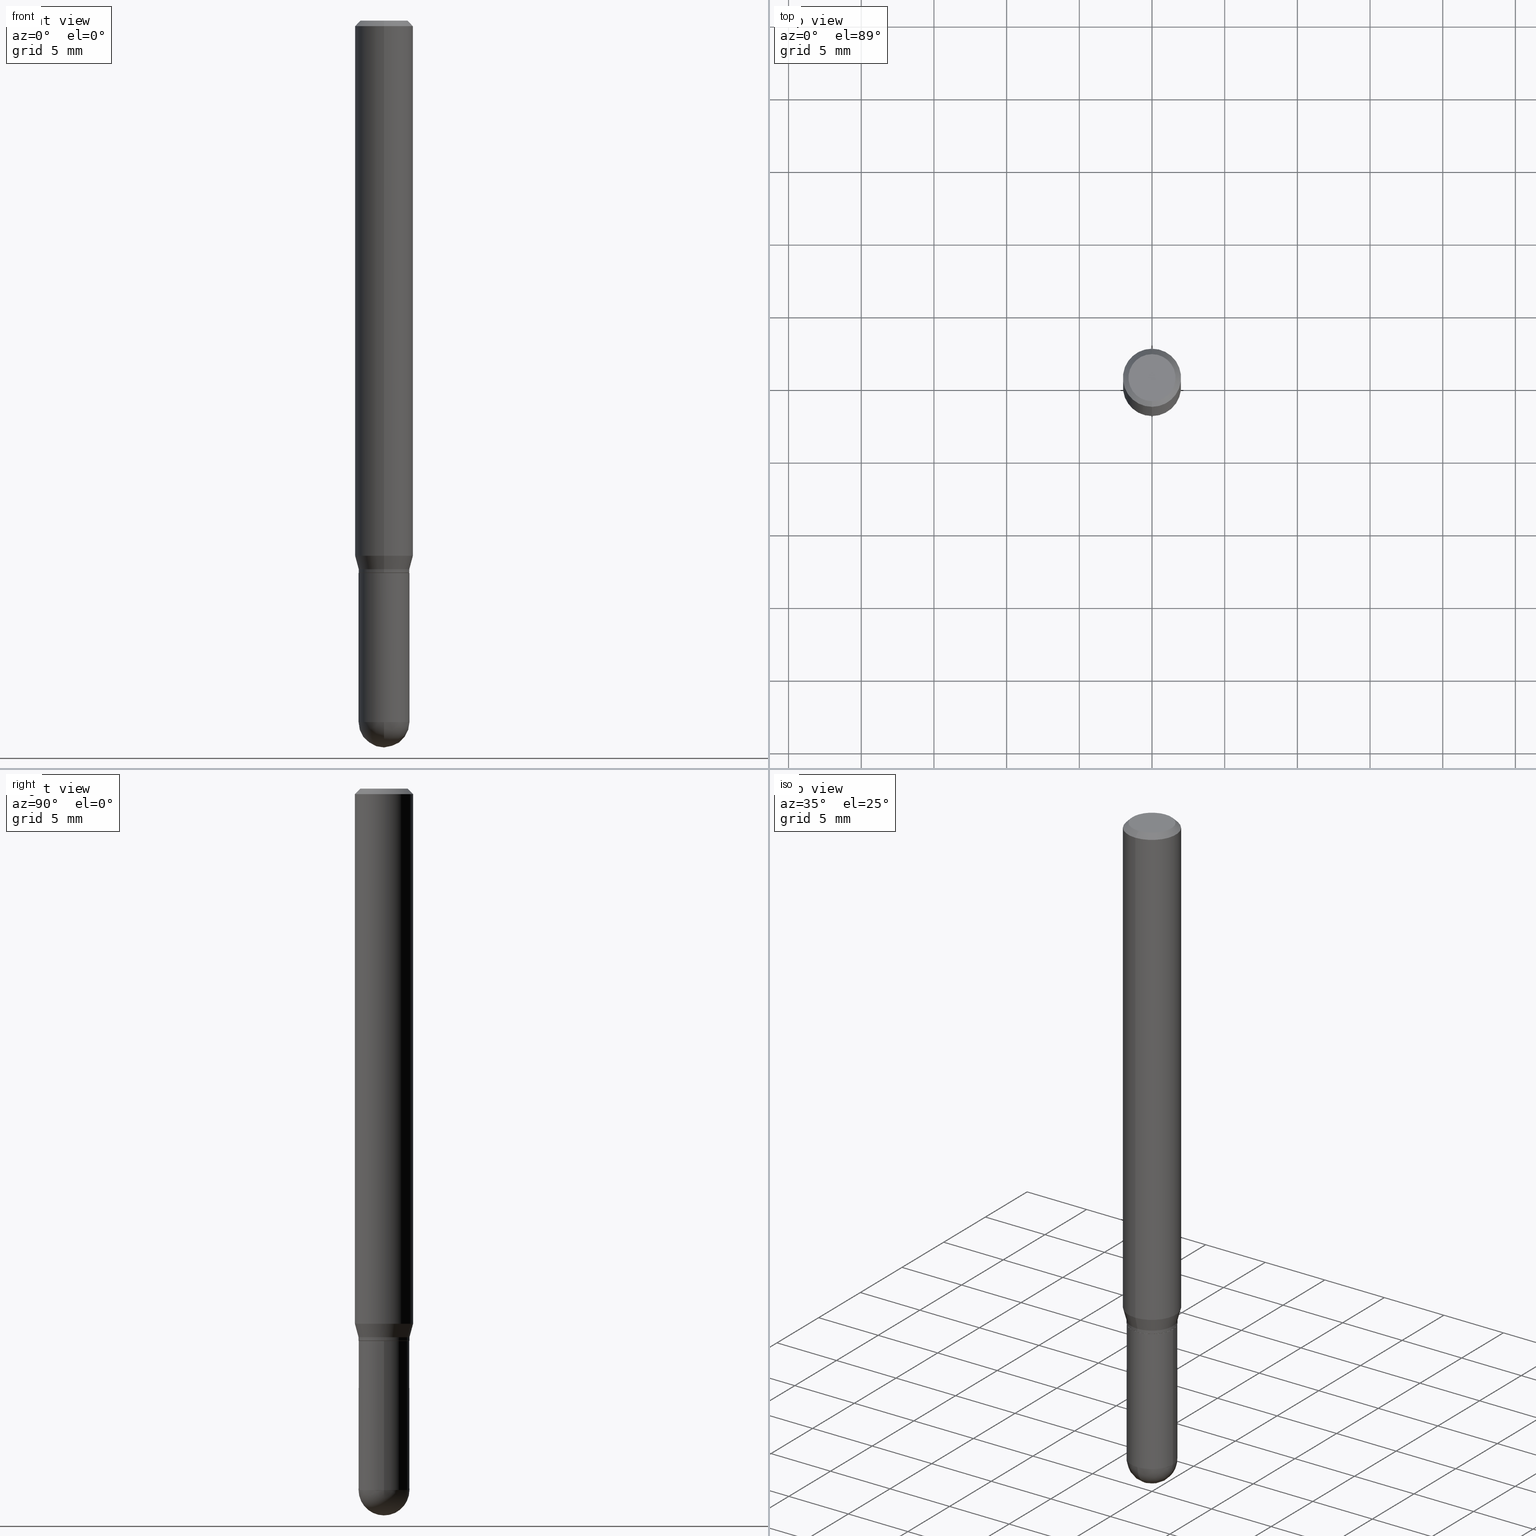
[diagram: canonical four-view strip — front | top / right | iso, engineering-drawing reading convention]
A machine part, canonical four-view strip (front | top / right | iso — engineering-drawing reading convention). The complete STEP part file that produces these views, byte-faithful:
ISO-10303-21;
HEADER;
FILE_DESCRIPTION (( 'STEP AP203' ),
    '1' );
FILE_NAME ('48868.STEP',
    '2024-03-08T13:32:44',
    ( '' ),
    ( '' ),
    'SwSTEP 2.0',
    'SolidWorks 2023',
    '' );
FILE_SCHEMA (( 'CONFIG_CONTROL_DESIGN' ));
ENDSEC;

DATA;
#1 = DIRECTION ( 'NONE',  ( -2.445908048954081787E-29, 3.490852318197870426E-15, 1.000000000000000000 ) ) ;
#2 = AXIS2_PLACEMENT_3D ( 'NONE', #27, #419, #63 ) ;
#3 = VERTEX_POINT ( 'NONE', #241 ) ;
#4 = DIRECTION ( 'NONE',  ( 6.982962677686264344E-15, 1.000000000000000000, -3.496114991891765576E-15 ) ) ;
#5 = ORIENTED_EDGE ( 'NONE', *, *, #56, .T. ) ;
#6 = DIRECTION ( 'NONE',  ( -4.851104656540964275E-15, -0.7071067811865500152, -0.7071067811865450192 ) ) ;
#7 = MANIFOLD_SOLID_BREP ( 'Body-Move/Copy2[1]', #458 ) ;
#8 = DIRECTION ( 'NONE',  ( 1.000000000000000000, -6.982962677686273021E-15, 0.000000000000000000 ) ) ;
#9 = LOCAL_TIME ( 8, 32, 44.00000000000000000, #81 ) ;
#10 = VERTEX_POINT ( 'NONE', #360 ) ;
#11 = ORIENTED_EDGE ( 'NONE', *, *, #97, .T. ) ;
#12 = DIRECTION ( 'NONE',  ( 2.445908048954081787E-29, -3.490852318197870426E-15, -1.000000000000000000 ) ) ;
#13 = DATE_AND_TIME ( #312, #9 ) ;
#14 = CYLINDRICAL_SURFACE ( 'NONE', #265, 0.07874999999999997280 ) ;
#15 = ORIENTED_EDGE ( 'NONE', *, *, #127, .F. ) ;
#16 = DIRECTION ( 'NONE',  ( -6.982962677686264344E-15, -1.000000000000000000, 3.490852318197869243E-15 ) ) ;
#17 = EDGE_CURVE ( 'NONE', #90, #414, #444, .T. ) ;
#18 = ORIENTED_EDGE ( 'NONE', *, *, #328, .T. ) ;
#19 = AXIS2_PLACEMENT_3D ( 'NONE', #124, #484, #404 ) ;
#20 = CYLINDRICAL_SURFACE ( 'NONE', #362, 0.06890000000000007230 ) ;
#21 = CYLINDRICAL_SURFACE ( 'NONE', #35, 0.07874999999999997280 ) ;
#22 = FACE_OUTER_BOUND ( 'NONE', #349, .T. ) ;
#23 = ADVANCED_FACE ( 'NONE', ( #22 ), #401, .T. ) ;
#24 = DIRECTION ( 'NONE',  ( -2.445908048954081787E-29, 3.490852318197870426E-15, 1.000000000000000000 ) ) ;
#25 = DIRECTION ( 'NONE',  ( -4.937700262164674260E-15, -0.7071067811865632269, 0.7071067811865319186 ) ) ;
#26 = CIRCLE ( 'NONE', #109, 0.06889999999999972535 ) ;
#27 = CARTESIAN_POINT ( 'NONE',  ( 4.645412544229285965E-29, -6.632417951266439838E-15, -1.899600000000000177 ) ) ;
#28 = ADVANCED_FACE ( 'NONE', ( #187 ), #383, .F. ) ;
#29 = CARTESIAN_POINT ( 'NONE',  ( 4.679918503997674770E-29, -6.583003452920844326E-15, -1.899600000000000177 ) ) ;
#30 = DIRECTION ( 'NONE',  ( -6.982962677686265922E-15, -1.000000000000000000, 3.490852318197870426E-15 ) ) ;
#31 = CARTESIAN_POINT ( 'NONE',  ( 3.634863951550660961E-29, -5.187755630073856027E-15, -1.486099999999999977 ) ) ;
#32 = CARTESIAN_POINT ( 'NONE',  ( 3.668862073431105567E-31, -5.236278477296780938E-17, -0.01499999999999993006 ) ) ;
#33 = APPROVAL_DATE_TIME ( #13, #175 ) ;
#34 = APPROVAL ( #339, 'UNSPECIFIED' ) ;
#35 = AXIS2_PLACEMENT_3D ( 'NONE', #143, #461, #370 ) ;
#36 = DIRECTION ( 'NONE',  ( -2.445468806185136597E-29, 3.491481338843145583E-15, 1.000000000000000000 ) ) ;
#37 = EDGE_LOOP ( 'NONE', ( #125, #437, #207, #281 ) ) ;
#38 = ORIENTED_EDGE ( 'NONE', *, *, #239, .F. ) ;
#39 = DIRECTION ( 'NONE',  ( 2.445908048954081787E-29, -3.490852318197870426E-15, -1.000000000000000000 ) ) ;
#40 = VERTEX_POINT ( 'NONE', #343 ) ;
#41 = CARTESIAN_POINT ( 'NONE',  ( -0.06890000000000008618, -5.438447646216124813E-15, -1.899600000000000177 ) ) ;
#42 = VECTOR ( 'NONE', #290, 39.37007874015748143 ) ;
#43 = CIRCLE ( 'NONE', #19, 0.06890000000000007230 ) ;
#44 = VERTEX_POINT ( 'NONE', #146 ) ;
#45 = CC_DESIGN_PERSON_AND_ORGANIZATION_ASSIGNMENT ( #332, #506, ( #501 ) ) ;
#46 = EDGE_CURVE ( 'NONE', #399, #340, #111, .T. ) ;
#47 = PRODUCT ( '48868', '48868', '', ( #177 ) ) ;
#48 = ORIENTED_EDGE ( 'NONE', *, *, #212, .T. ) ;
#49 = ORIENTED_EDGE ( 'NONE', *, *, #381, .T. ) ;
#50 = EDGE_CURVE ( 'NONE', #314, #434, #507, .T. ) ;
#51 = AXIS2_PLACEMENT_3D ( 'NONE', #316, #36, #8 ) ;
#52 = CONICAL_SURFACE ( 'NONE', #245, 0.07875000000000000056, 0.7853981633974483900 ) ;
#53 = ORIENTED_EDGE ( 'NONE', *, *, #275, .F. ) ;
#54 = PERSON_AND_ORGANIZATION ( #470, #262 ) ;
#55 = AXIS2_PLACEMENT_3D ( 'NONE', #185, #100, #418 ) ;
#56 = EDGE_CURVE ( 'NONE', #393, #40, #335, .T. ) ;
#57 = LINE ( 'NONE', #62, #459 ) ;
#58 = CIRCLE ( 'NONE', #158, 0.07875000000000000056 ) ;
#59 = EDGE_CURVE ( 'NONE', #193, #246, #71, .T. ) ;
#60 = CARTESIAN_POINT ( 'NONE',  ( 4.895639449387079640E-16, 0.06889999999999986413, -2.405197247238327755E-16 ) ) ;
#61 =( CONVERSION_BASED_UNIT ( 'INCH', #106 ) LENGTH_UNIT ( ) NAMED_UNIT ( #103 ) );
#62 = CARTESIAN_POINT ( 'NONE',  ( -0.06890000000000007230, 4.895639449387095418E-16, -3.389146277185633520E-30 ) ) ;
#63 = DIRECTION ( 'NONE',  ( 1.000000000000000000, -6.982962677686273021E-15, 0.000000000000000000 ) ) ;
#64 = FACE_OUTER_BOUND ( 'NONE', #37, .T. ) ;
#65 = DATE_TIME_ROLE ( 'creation_date' ) ;
#66 = CIRCLE ( 'NONE', #140, 0.06889999999999972535 ) ;
#67 = CARTESIAN_POINT ( 'NONE',  ( 3.668862073431105567E-31, -5.236278477296780938E-17, -0.01499999999999993006 ) ) ;
#68 = AXIS2_PLACEMENT_3D ( 'NONE', #234, #392, #308 ) ;
#69 = PERSON_AND_ORGANIZATION ( #470, #262 ) ;
#70 = DIRECTION ( 'NONE',  ( -2.445908048954081787E-29, 3.490852318197870426E-15, 1.000000000000000000 ) ) ;
#71 = LINE ( 'NONE', #60, #42 ) ;
#72 = ADVANCED_FACE ( 'NONE', ( #225 ), #144, .T. ) ;
#73 = CARTESIAN_POINT ( 'NONE',  ( -5.499083108677932471E-16, -0.07874999999999997280, 2.749046200580822473E-16 ) ) ;
#74 = CARTESIAN_POINT ( 'NONE',  ( -5.402642173245076924E-16, -0.07875000000000004219, -0.01499999999999965423 ) ) ;
#75 = AXIS2_PLACEMENT_3D ( 'NONE', #425, #500, #30 ) ;
#76 = DIRECTION ( 'NONE',  ( -2.445908048954081787E-29, 3.490852318197870426E-15, 1.000000000000000000 ) ) ;
#77 = CIRCLE ( 'NONE', #445, 0.06840000000000005798 ) ;
#78 = LOCAL_TIME ( 8, 32, 44.00000000000000000, #503 ) ;
#79 = ORIENTED_EDGE ( 'NONE', *, *, #338, .T. ) ;
#80 = CARTESIAN_POINT ( 'NONE',  ( -5.499083108677930499E-16, -0.07875000000000004219, -0.01499999999999965423 ) ) ;
#81 = COORDINATED_UNIVERSAL_TIME_OFFSET ( 5, 0, .BEHIND. ) ;
#82 = EDGE_LOOP ( 'NONE', ( #321, #235 ) ) ;
#83 = ORIENTED_EDGE ( 'NONE', *, *, #145, .T. ) ;
#84 = DIRECTION ( 'NONE',  ( -2.445468806185136597E-29, 3.491481338843145583E-15, 1.000000000000000000 ) ) ;
#85 = COORDINATED_UNIVERSAL_TIME_OFFSET ( 5, 0, .BEHIND. ) ;
#86 = EDGE_LOOP ( 'NONE', ( #412, #15, #347, #11 ) ) ;
#87 = CARTESIAN_POINT ( 'NONE',  ( -1.700314702926918523E-45, 2.426725536520685702E-31, 6.951670581623077474E-17 ) ) ;
#88 = DIRECTION ( 'NONE',  ( 4.937700262164548042E-15, 0.7071067811865451302, -0.7071067811865499042 ) ) ;
#89 = CONICAL_SURFACE ( 'NONE', #368, 0.07875000000000000056, 0.7853981633974483900 ) ;
#90 = VERTEX_POINT ( 'NONE', #295 ) ;
#91 = DATE_TIME_ROLE ( 'classification_date' ) ;
#92 = ORIENTED_EDGE ( 'NONE', *, *, #317, .T. ) ;
#93 = PRODUCT_RELATED_PRODUCT_CATEGORY ( 'detail', '', ( #47 ) ) ;
#94 = EDGE_CURVE ( 'NONE', #246, #340, #26, .T. ) ;
#95 = VECTOR ( 'NONE', #371, 39.37007874015748143 ) ;
#96 = DIRECTION ( 'NONE',  ( -2.445908048954081787E-29, 3.490852318197870426E-15, 1.000000000000000000 ) ) ;
#97 = EDGE_CURVE ( 'NONE', #327, #408, #309, .T. ) ;
#98 = COORDINATED_UNIVERSAL_TIME_OFFSET ( 5, 0, .BEHIND. ) ;
#99 = ADVANCED_FACE ( 'NONE', ( #64 ), #379, .T. ) ;
#100 = DIRECTION ( 'NONE',  ( -2.445908048954081787E-29, 3.490852318197870426E-15, 1.000000000000000000 ) ) ;
#101 = AXIS2_PLACEMENT_3D ( 'NONE', #213, #462, #423 ) ;
#102 = PRODUCT_DEFINITION_FORMATION_WITH_SPECIFIED_SOURCE ( 'ANY', '', #47, .NOT_KNOWN. ) ;
#103 = DIMENSIONAL_EXPONENTS ( 1.000000000000000000, 0.000000000000000000, 0.000000000000000000, 0.000000000000000000, 0.000000000000000000, 0.000000000000000000, 0.000000000000000000 ) ;
#104 = DIRECTION ( 'NONE',  ( -1.000000000000000000, 6.982962677686265922E-15, -4.876176775795935793E-29 ) ) ;
#105 = APPLICATION_PROTOCOL_DEFINITION ( 'international standard', 'config_control_design', 1994, #233 ) ;
#106 = LENGTH_MEASURE_WITH_UNIT ( LENGTH_MEASURE( 0.02539999999999999897 ), #115 );
#107 = LINE ( 'NONE', #331, #497 ) ;
#108 = DIRECTION ( 'NONE',  ( 1.000000000000000000, -6.982962677686265922E-15, 4.883557194083112340E-29 ) ) ;
#109 = AXIS2_PLACEMENT_3D ( 'NONE', #302, #24, #453 ) ;
#110 = SECURITY_CLASSIFICATION_LEVEL ( 'unclassified' ) ;
#111 = LINE ( 'NONE', #174, #367 ) ;
#112 = CARTESIAN_POINT ( 'NONE',  ( 3.634863951550660961E-29, -5.187755630073856027E-15, -1.486099999999999977 ) ) ;
#113 = PERSON_AND_ORGANIZATION_ROLE ( 'creator' ) ;
#114 = EDGE_CURVE ( 'NONE', #434, #193, #299, .T. ) ;
#115 =( LENGTH_UNIT ( ) NAMED_UNIT ( * ) SI_UNIT ( $, .METRE. ) );
#116 = CARTESIAN_POINT ( 'NONE',  ( -4.811261284925454787E-16, -0.06890000000000491565, -1.486099999999999755 ) ) ;
#117 = AXIS2_PLACEMENT_3D ( 'NONE', #31, #250, #465 ) ;
#118 = AXIS2_PLACEMENT_3D ( 'NONE', #510, #369, #329 ) ;
#119 = ORIENTED_EDGE ( 'NONE', *, *, #243, .F. ) ;
#120 = PERSON_AND_ORGANIZATION ( #470, #262 ) ;
#121 = EDGE_CURVE ( 'NONE', #393, #327, #107, .T. ) ;
#122 = ORIENTED_EDGE ( 'NONE', *, *, #56, .F. ) ;
#123 = CYLINDRICAL_SURFACE ( 'NONE', #182, 0.06890000000000007230 ) ;
#124 = CARTESIAN_POINT ( 'NONE',  ( 4.645412544229285965E-29, -6.632417951266439838E-15, -1.899600000000000177 ) ) ;
#125 = ORIENTED_EDGE ( 'NONE', *, *, #50, .T. ) ;
#126 = AXIS2_PLACEMENT_3D ( 'NONE', #222, #254, #104 ) ;
#127 = EDGE_CURVE ( 'NONE', #229, #44, #251, .T. ) ;
#128 = ORIENTED_EDGE ( 'NONE', *, *, #164, .F. ) ;
#129 = ORIENTED_EDGE ( 'NONE', *, *, #363, .F. ) ;
#130 = CC_DESIGN_APPROVAL ( #175, ( #219 ) ) ;
#131 = AXIS2_PLACEMENT_3D ( 'NONE', #267, #505, #139 ) ;
#132 = DIRECTION ( 'NONE',  ( 1.000000000000000000, -6.982962677686273021E-15, 0.000000000000000000 ) ) ;
#133 = ADVANCED_FACE ( 'NONE', ( #294 ), #460, .F. ) ;
#134 = PERSON_AND_ORGANIZATION ( #470, #262 ) ;
#135 = DIRECTION ( 'NONE',  ( -2.445908048954081787E-29, 3.490852318197870426E-15, 1.000000000000000000 ) ) ;
#136 = EDGE_LOOP ( 'NONE', ( #406, #351, #364, #167 ) ) ;
#137 = APPROVAL_ROLE ( '' ) ;
#138 = APPLICATION_CONTEXT ( 'configuration controlled 3d designs of mechanical parts and assemblies' ) ;
#139 = DIRECTION ( 'NONE',  ( -6.982962677686264344E-15, -1.000000000000000000, 3.490852318197869243E-15 ) ) ;
#140 = AXIS2_PLACEMENT_3D ( 'NONE', #112, #150, #226 ) ;
#141 = AXIS2_PLACEMENT_3D ( 'NONE', #511, #70, #378 ) ;
#142 = AXIS2_PLACEMENT_3D ( 'NONE', #475, #348, #486 ) ;
#143 = CARTESIAN_POINT ( 'NONE',  ( 0.000000000000000000, 0.000000000000000000, 0.000000000000000000 ) ) ;
#144 = SPHERICAL_SURFACE ( 'NONE', #227, 0.06889999999999996128 ) ;
#145 = EDGE_CURVE ( 'NONE', #414, #496, #190, .T. ) ;
#146 = CARTESIAN_POINT ( 'NONE',  ( -4.888104823412213911E-16, -0.06375000000000000111, 2.920585411013450524E-16 ) ) ;
#147 = DIRECTION ( 'NONE',  ( -2.445468806185136597E-29, 3.491481338843145583E-15, 1.000000000000000000 ) ) ;
#148 = DIRECTION ( 'NONE',  ( -2.445908048954081787E-29, 3.490852318197870426E-15, 1.000000000000000000 ) ) ;
#149 = VECTOR ( 'NONE', #160, 39.37007874015748854 ) ;
#150 = DIRECTION ( 'NONE',  ( -2.445908048954081787E-29, 3.490852318197870426E-15, 1.000000000000000000 ) ) ;
#151 = ORIENTED_EDGE ( 'NONE', *, *, #366, .T. ) ;
#152 = LINE ( 'NONE', #73, #361 ) ;
#153 = DIRECTION ( 'NONE',  ( -2.445468806185136597E-29, 3.491481338843145583E-15, 1.000000000000000000 ) ) ;
#154 = ORIENTED_EDGE ( 'NONE', *, *, #451, .T. ) ;
#155 = CC_DESIGN_DATE_AND_TIME_ASSIGNMENT ( #415, #65, ( #501 ) ) ;
#156 = AXIS2_PLACEMENT_3D ( 'NONE', #427, #135, #334 ) ;
#157 = CARTESIAN_POINT ( 'NONE',  ( 4.895639449387457308E-16, 0.06889999999999479874, -1.495600000000000263 ) ) ;
#158 = AXIS2_PLACEMENT_3D ( 'NONE', #67, #148, #224 ) ;
#159 = EDGE_LOOP ( 'NONE', ( #247, #192 ) ) ;
#160 = DIRECTION ( 'NONE',  ( 1.839019923739594004E-15, 0.2588190451025240701, 0.9659258262890673130 ) ) ;
#161 = CARTESIAN_POINT ( 'NONE',  ( 3.658665880933582389E-29, -5.223605231043229660E-15, -1.496099999999999985 ) ) ;
#162 = ORIENTED_EDGE ( 'NONE', *, *, #59, .F. ) ;
#163 = LINE ( 'NONE', #74, #336 ) ;
#164 = EDGE_CURVE ( 'NONE', #10, #3, #380, .T. ) ;
#165 = EDGE_LOOP ( 'NONE', ( #162, #79, #480, #197 ) ) ;
#166 = VECTOR ( 'NONE', #504, 39.37007874015748143 ) ;
#167 = ORIENTED_EDGE ( 'NONE', *, *, #451, .F. ) ;
#168 = MANIFOLD_SOLID_BREP ( 'Body-Move/Copy2[2]', #242 ) ;
#169 = FACE_OUTER_BOUND ( 'NONE', #230, .T. ) ;
#170 = ORIENTED_EDGE ( 'NONE', *, *, #275, .T. ) ;
#171 = ADVANCED_FACE ( 'NONE', ( #463 ), #421, .T. ) ;
#172 = AXIS2_PLACEMENT_3D ( 'NONE', #435, #198, #280 ) ;
#173 = PERSON_AND_ORGANIZATION_ROLE ( 'classification_officer' ) ;
#174 = CARTESIAN_POINT ( 'NONE',  ( -4.811261284925827524E-16, -0.06889999999999986413, 2.405197247238327755E-16 ) ) ;
#175 = APPROVAL ( #272, 'UNSPECIFIED' ) ;
#176 = DIRECTION ( 'NONE',  ( -1.000000000000000000, 6.982962677686265922E-15, -4.883557194083112901E-29 ) ) ;
#177 = MECHANICAL_CONTEXT ( 'NONE', #233, 'mechanical' ) ;
#178 = ADVANCED_FACE ( 'NONE', ( #257 ), #14, .T. ) ;
#179 = ORIENTED_EDGE ( 'NONE', *, *, #447, .F. ) ;
#180 = AXIS2_PLACEMENT_3D ( 'NONE', #482, #236, #442 ) ;
#181 = DIRECTION ( 'NONE',  ( -2.445908048954081787E-29, 3.490852318197870426E-15, 1.000000000000000000 ) ) ;
#182 = AXIS2_PLACEMENT_3D ( 'NONE', #319, #84, #232 ) ;
#183 = DIRECTION ( 'NONE',  ( 6.982962677686265922E-15, 1.000000000000000000, -3.964946289788482474E-15 ) ) ;
#184 = DIRECTION ( 'NONE',  ( 1.000000000000000000, -6.982962677686265922E-15, 4.876176775795935232E-29 ) ) ;
#185 = CARTESIAN_POINT ( 'NONE',  ( 3.668862073431105567E-31, -5.236278477296780938E-17, -0.01499999999999993006 ) ) ;
#186 = EDGE_CURVE ( 'NONE', #3, #10, #417, .T. ) ;
#187 = FACE_OUTER_BOUND ( 'NONE', #400, .T. ) ;
#188 = DIRECTION ( 'NONE',  ( 6.982962677686264344E-15, 1.000000000000000000, -3.496114991891765576E-15 ) ) ;
#189 = CIRCLE ( 'NONE', #494, 0.07874999999999997280 ) ;
#190 = CIRCLE ( 'NONE', #2, 0.06890000000000007230 ) ;
#191 = CARTESIAN_POINT ( 'NONE',  ( 0.000000000000000000, 0.000000000000000000, 0.000000000000000000 ) ) ;
#192 = ORIENTED_EDGE ( 'NONE', *, *, #413, .T. ) ;
#193 = VERTEX_POINT ( 'NONE', #157 ) ;
#194 = ORIENTED_EDGE ( 'NONE', *, *, #306, .T. ) ;
#195 = LINE ( 'NONE', #398, #149 ) ;
#196 = DIRECTION ( 'NONE',  ( -6.982962677686265922E-15, -1.000000000000000000, 3.469013325287954477E-15 ) ) ;
#197 = ORIENTED_EDGE ( 'NONE', *, *, #94, .F. ) ;
#198 = DIRECTION ( 'NONE',  ( -2.445908048954081787E-29, 3.490852318197870426E-15, 1.000000000000000000 ) ) ;
#199 = FACE_OUTER_BOUND ( 'NONE', #159, .T. ) ;
#200 = AXIS2_PLACEMENT_3D ( 'NONE', #268, #310, #273 ) ;
#201 = EDGE_LOOP ( 'NONE', ( #358, #326, #38, #208 ) ) ;
#202 = CARTESIAN_POINT ( 'NONE',  ( 5.595524044111142018E-16, 0.07874999999999494904, -1.449339299545445936 ) ) ;
#203 = EDGE_LOOP ( 'NONE', ( #498, #170, #194, #422 ) ) ;
#204 = ADVANCED_FACE ( 'NONE', ( #199 ), #228, .F. ) ;
#205 = CIRCLE ( 'NONE', #180, 0.06889999999999998903 ) ;
#206 = ORIENTED_EDGE ( 'NONE', *, *, #413, .F. ) ;
#207 = ORIENTED_EDGE ( 'NONE', *, *, #407, .F. ) ;
#208 = ORIENTED_EDGE ( 'NONE', *, *, #212, .F. ) ;
#209 = AXIS2_PLACEMENT_3D ( 'NONE', #346, #436, #269 ) ;
#210 = APPROVAL_STATUS ( 'not_yet_approved' ) ;
#211 = CARTESIAN_POINT ( 'NONE',  ( 3.658100078015724901E-29, -5.220918727096735365E-15, -1.495600000000000041 ) ) ;
#212 = EDGE_CURVE ( 'NONE', #496, #502, #282, .T. ) ;
#213 = CARTESIAN_POINT ( 'NONE',  ( 0.000000000000000000, 0.000000000000000000, 0.000000000000000000 ) ) ;
#214 = DIRECTION ( 'NONE',  ( -6.982962677686266711E-15, -1.000000000000000000, 3.993929815298627073E-15 ) ) ;
#215 =( NAMED_UNIT ( * ) SI_UNIT ( $, .STERADIAN. ) SOLID_ANGLE_UNIT ( ) );
#216 = CARTESIAN_POINT ( 'NONE',  ( 3.658665880933582389E-29, -5.223605231043229660E-15, -1.496099999999999985 ) ) ;
#217 = DIRECTION ( 'NONE',  ( -6.982962677686266711E-15, -1.000000000000000000, 3.993929815298627073E-15 ) ) ;
#218 = DIRECTION ( 'NONE',  ( 1.000000000000000000, -6.982962677686273021E-15, 0.000000000000000000 ) ) ;
#219 = SECURITY_CLASSIFICATION ( '', '', #110 ) ;
#220 = VECTOR ( 'NONE', #88, 39.37007874015748143 ) ;
#221 = DIRECTION ( 'NONE',  ( -2.445908048954081787E-29, 3.490852318197870426E-15, 1.000000000000000000 ) ) ;
#222 = CARTESIAN_POINT ( 'NONE',  ( 4.811261284926208150E-16, 0.06889999999999484037, -1.496100000000000207 ) ) ;
#223 = EDGE_CURVE ( 'NONE', #40, #393, #189, .T. ) ;
#224 = DIRECTION ( 'NONE',  ( -6.982962677686264344E-15, -1.000000000000000000, 3.496114991891765576E-15 ) ) ;
#225 = FACE_OUTER_BOUND ( 'NONE', #276, .T. ) ;
#226 = DIRECTION ( 'NONE',  ( -6.982962677686266711E-15, -1.000000000000000000, 3.964946289788496674E-15 ) ) ;
#227 = AXIS2_PLACEMENT_3D ( 'NONE', #341, #176, #183 ) ;
#228 = PLANE ( 'NONE',  #68 ) ;
#229 = VERTEX_POINT ( 'NONE', #488 ) ;
#230 = EDGE_LOOP ( 'NONE', ( #473, #83, #48, #92, #128 ) ) ;
#231 = ORIENTED_EDGE ( 'NONE', *, *, #447, .T. ) ;
#232 = DIRECTION ( 'NONE',  ( 1.000000000000000000, -6.982962677686265922E-15, 4.876176775795935232E-29 ) ) ;
#233 = APPLICATION_CONTEXT ( 'configuration controlled 3d designs of mechanical parts and assemblies' ) ;
#234 = CARTESIAN_POINT ( 'NONE',  ( 4.451638707024993845E-16, 0.06375000000000000111, -1.877834823769988410E-16 ) ) ;
#235 = ORIENTED_EDGE ( 'NONE', *, *, #164, .T. ) ;
#236 = DIRECTION ( 'NONE',  ( -2.445908048954081787E-29, 3.490852318197870426E-15, 1.000000000000000000 ) ) ;
#237 = AXIS2_PLACEMENT_3D ( 'NONE', #161, #153, #395 ) ;
#238 = EDGE_LOOP ( 'NONE', ( #357, #18, #471, #283, #405 ) ) ;
#239 = EDGE_CURVE ( 'NONE', #502, #90, #43, .T. ) ;
#240 = APPROVAL_ROLE ( '' ) ;
#241 = CARTESIAN_POINT ( 'NONE',  ( 0.06890000000000007230, -5.704731359535814187E-15, -1.496099999999999985 ) ) ;
#242 = CLOSED_SHELL ( 'NONE', ( #261, #99, #428, #178, #396, #23, #291, #493, #204, #28, #375, #323 ) ) ;
#243 = EDGE_CURVE ( 'NONE', #229, #327, #278, .T. ) ;
#244 = AXIS2_PLACEMENT_3D ( 'NONE', #87, #277, #16 ) ;
#245 = AXIS2_PLACEMENT_3D ( 'NONE', #32, #39, #188 ) ;
#246 = VERTEX_POINT ( 'NONE', #449 ) ;
#247 = ORIENTED_EDGE ( 'NONE', *, *, #127, .T. ) ;
#248 = CALENDAR_DATE ( 2024, 8, 3 ) ;
#249 = CYLINDRICAL_SURFACE ( 'NONE', #354, 0.06889999999999986413 ) ;
#250 = DIRECTION ( 'NONE',  ( -2.445908048954081787E-29, 3.490852318197870426E-15, 1.000000000000000000 ) ) ;
#251 = CIRCLE ( 'NONE', #131, 0.06375000000000000111 ) ;
#252 = APPROVAL_PERSON_ORGANIZATION ( #54, #455, #137 ) ;
#253 = CALENDAR_DATE ( 2024, 8, 3 ) ;
#254 = DIRECTION ( 'NONE',  ( 2.438088387897960049E-29, -3.491481338843145188E-15, -1.000000000000000000 ) ) ;
#255 = APPLICATION_PROTOCOL_DEFINITION ( 'international standard', 'config_control_design', 1994, #138 ) ;
#256 = CARTESIAN_POINT ( 'NONE',  ( 0.000000000000000000, 0.000000000000000000, 0.000000000000000000 ) ) ;
#257 = FACE_OUTER_BOUND ( 'NONE', #136, .T. ) ;
#258 = APPROVAL_DATE_TIME ( #296, #34 ) ;
#259 = CARTESIAN_POINT ( 'NONE',  ( 4.851357352610053575E-29, -6.819347608944073688E-15, -1.968500000000000139 ) ) ;
#260 = CARTESIAN_POINT ( 'NONE',  ( 4.860112312599455225E-16, 0.06839999999999483993, -1.496100000000000207 ) ) ;
#261 = ADVANCED_FACE ( 'NONE', ( #320 ), #420, .T. ) ;
#262 = ORGANIZATION ( 'UNSPECIFIED', 'UNSPECIFIED', '' ) ;
#263 = AXIS2_PLACEMENT_3D ( 'NONE', #495, #365, #132 ) ;
#264 =( NAMED_UNIT ( * ) PLANE_ANGLE_UNIT ( ) SI_UNIT ( $, .RADIAN. ) );
#265 = AXIS2_PLACEMENT_3D ( 'NONE', #191, #76, #388 ) ;
#266 = DIRECTION ( 'NONE',  ( 6.982962677686265922E-15, 1.000000000000000000, 0.000000000000000000 ) ) ;
#267 = CARTESIAN_POINT ( 'NONE',  ( -1.700314702926918523E-45, 2.426725536520685702E-31, 6.951670581623077474E-17 ) ) ;
#268 = CARTESIAN_POINT ( 'NONE',  ( 4.679918503997674770E-29, -6.583003452920844326E-15, -1.899600000000000177 ) ) ;
#269 = DIRECTION ( 'NONE',  ( 6.982962677686265922E-15, 1.000000000000000000, -3.964946289788482474E-15 ) ) ;
#270 = CC_DESIGN_DATE_AND_TIME_ASSIGNMENT ( #490, #91, ( #219 ) ) ;
#271 = FACE_OUTER_BOUND ( 'NONE', #238, .T. ) ;
#272 = APPROVAL_STATUS ( 'not_yet_approved' ) ;
#273 = DIRECTION ( 'NONE',  ( -7.105427357601001859E-15, -1.000000000000000000, 0.000000000000000000 ) ) ;
#274 = CIRCLE ( 'NONE', #426, 0.06889999999999996128 ) ;
#275 = EDGE_CURVE ( 'NONE', #434, #314, #77, .T. ) ;
#276 = EDGE_LOOP ( 'NONE', ( #129, #49, #454, #492 ) ) ;
#277 = DIRECTION ( 'NONE',  ( -2.445908048954081787E-29, 3.490852318197870426E-15, 1.000000000000000000 ) ) ;
#278 = LINE ( 'NONE', #440, #220 ) ;
#279 = ORIENTED_EDGE ( 'NONE', *, *, #121, .F. ) ;
#280 = DIRECTION ( 'NONE',  ( -6.982962677686266711E-15, -1.000000000000000000, 3.964946289788496674E-15 ) ) ;
#281 = ORIENTED_EDGE ( 'NONE', *, *, #306, .F. ) ;
#282 = CIRCLE ( 'NONE', #51, 0.06890000000000007230 ) ;
#283 = ORIENTED_EDGE ( 'NONE', *, *, #317, .F. ) ;
#284 = CC_DESIGN_PERSON_AND_ORGANIZATION_ASSIGNMENT ( #300, #499, ( #47 ) ) ;
#285 = ORIENTED_EDGE ( 'NONE', *, *, #483, .T. ) ;
#286 = APPROVAL_PERSON_ORGANIZATION ( #120, #175, #240 ) ;
#287 = ADVANCED_FACE ( 'NONE', ( #169 ), #20, .T. ) ;
#288 = CONICAL_SURFACE ( 'NONE', #142, 0.06840000000000005798, 0.7853981633974739252 ) ;
#289 = APPROVAL_ROLE ( '' ) ;
#290 = DIRECTION ( 'NONE',  ( -2.445908048954081507E-29, 3.490852318197870426E-15, 1.000000000000000000 ) ) ;
#291 = ADVANCED_FACE ( 'NONE', ( #372 ), #21, .T. ) ;
#292 = EDGE_LOOP ( 'NONE', ( #285, #231, #389, #485 ) ) ;
#293 = COORDINATED_UNIVERSAL_TIME_OFFSET ( 5, 0, .BEHIND. ) ;
#294 = FACE_OUTER_BOUND ( 'NONE', #82, .T. ) ;
#295 = CARTESIAN_POINT ( 'NONE',  ( 4.811261284926304785E-16, 0.06889999999999341096, -1.899600000000000399 ) ) ;
#296 = DATE_AND_TIME ( #253, #377 ) ;
#297 = EDGE_LOOP ( 'NONE', ( #448, #318, #438, #305 ) ) ;
#298 = EDGE_CURVE ( 'NONE', #408, #327, #58, .T. ) ;
#299 = LINE ( 'NONE', #260, #95 ) ;
#300 = PERSON_AND_ORGANIZATION ( #470, #262 ) ;
#301 = DIRECTION ( 'NONE',  ( -2.445468806185136877E-29, 3.491481338843145188E-15, 1.000000000000000000 ) ) ;
#302 = CARTESIAN_POINT ( 'NONE',  ( 3.634863951550660961E-29, -5.187755630073856027E-15, -1.486099999999999977 ) ) ;
#303 = DATE_AND_TIME ( #456, #432 ) ;
#304 = LINE ( 'NONE', #376, #390 ) ;
#305 = ORIENTED_EDGE ( 'NONE', *, *, #46, .F. ) ;
#306 = EDGE_CURVE ( 'NONE', #314, #399, #304, .T. ) ;
#307 = LINE ( 'NONE', #116, #409 ) ;
#308 = DIRECTION ( 'NONE',  ( 6.982962677686265922E-15, 1.000000000000000000, -3.490852318197870426E-15 ) ) ;
#309 = CIRCLE ( 'NONE', #55, 0.07875000000000000056 ) ;
#310 = DIRECTION ( 'NONE',  ( -1.000000000000000000, 7.105427357601001070E-15, -4.926315508542082329E-29 ) ) ;
#311 =( GEOMETRIC_REPRESENTATION_CONTEXT ( 3 ) GLOBAL_UNCERTAINTY_ASSIGNED_CONTEXT ( ( #324 ) ) GLOBAL_UNIT_ASSIGNED_CONTEXT ( ( #61, #264, #215 ) ) REPRESENTATION_CONTEXT ( 'NONE', 'WORKASPACE' ) );
#312 = CALENDAR_DATE ( 2024, 8, 3 ) ;
#313 = CARTESIAN_POINT ( 'NONE',  ( 3.544950658423675948E-29, -5.059429453673496817E-15, -1.449339299545445714 ) ) ;
#314 = VERTEX_POINT ( 'NONE', #382 ) ;
#315 = DIRECTION ( 'NONE',  ( -1.807323732225323828E-15, -0.2588190451025172978, 0.9659258262890690894 ) ) ;
#316 = CARTESIAN_POINT ( 'NONE',  ( 4.645412544229285965E-29, -6.632417951266439838E-15, -1.899600000000000177 ) ) ;
#317 = EDGE_CURVE ( 'NONE', #502, #3, #512, .T. ) ;
#318 = ORIENTED_EDGE ( 'NONE', *, *, #59, .T. ) ;
#319 = CARTESIAN_POINT ( 'NONE',  ( 0.000000000000000000, 0.000000000000000000, 0.000000000000000000 ) ) ;
#320 = FACE_OUTER_BOUND ( 'NONE', #297, .T. ) ;
#321 = ORIENTED_EDGE ( 'NONE', *, *, #186, .T. ) ;
#322 = AXIS2_PLACEMENT_3D ( 'NONE', #216, #374, #218 ) ;
#323 = ADVANCED_FACE ( 'NONE', ( #384 ), #249, .T. ) ;
#324 = UNCERTAINTY_MEASURE_WITH_UNIT (LENGTH_MEASURE( 1.000000000000000082E-05 ), #61, 'distance_accuracy_value', 'NONE');
#325 = ORIENTED_EDGE ( 'NONE', *, *, #50, .F. ) ;
#326 = ORIENTED_EDGE ( 'NONE', *, *, #363, .T. ) ;
#327 = VERTEX_POINT ( 'NONE', #464 ) ;
#328 = EDGE_CURVE ( 'NONE', #414, #10, #57, .T. ) ;
#329 = DIRECTION ( 'NONE',  ( 1.000000000000000000, 0.000000000000000000, 0.000000000000000000 ) ) ;
#330 = CARTESIAN_POINT ( 'NONE',  ( 0.000000000000000000, 0.000000000000000000, 0.000000000000000000 ) ) ;
#331 = CARTESIAN_POINT ( 'NONE',  ( 5.595524044110786045E-16, 0.07874999999999997280, -2.749046200580822473E-16 ) ) ;
#332 = PERSON_AND_ORGANIZATION ( #470, #262 ) ;
#333 = CARTESIAN_POINT ( 'NONE',  ( 0.06890000000000007230, -4.811261284925842315E-16, 3.359685798523402771E-30 ) ) ;
#334 = DIRECTION ( 'NONE',  ( -6.982962677686265922E-15, -1.000000000000000000, 3.469013325287954477E-15 ) ) ;
#335 = CIRCLE ( 'NONE', #156, 0.07874999999999997280 ) ;
#336 = VECTOR ( 'NONE', #6, 39.37007874015748143 ) ;
#337 = CC_DESIGN_SECURITY_CLASSIFICATION ( #219, ( #102 ) ) ;
#338 = EDGE_CURVE ( 'NONE', #193, #399, #508, .T. ) ;
#339 = APPROVAL_STATUS ( 'not_yet_approved' ) ;
#340 = VERTEX_POINT ( 'NONE', #457 ) ;
#341 = CARTESIAN_POINT ( 'NONE',  ( 4.679918503997674770E-29, -6.583003452920844326E-15, -1.899600000000000177 ) ) ;
#342 = ADVANCED_BREP_SHAPE_REPRESENTATION ( '48868', ( #7, #168, #118 ), #311 ) ;
#343 = CARTESIAN_POINT ( 'NONE',  ( -5.499083108677578469E-16, -0.07875000000000501044, -1.449339299545445270 ) ) ;
#344 = CARTESIAN_POINT ( 'NONE',  ( -4.895639449386624073E-16, -0.06890000000000662261, -1.899599999999999955 ) ) ;
#345 = CARTESIAN_POINT ( 'NONE',  ( 3.659323032040201153E-29, -5.222664153255832866E-15, -1.496099999999999985 ) ) ;
#346 = CARTESIAN_POINT ( 'NONE',  ( 4.679918503997674770E-29, -6.583003452920844326E-15, -1.899600000000000177 ) ) ;
#347 = ORIENTED_EDGE ( 'NONE', *, *, #243, .T. ) ;
#348 = DIRECTION ( 'NONE',  ( -2.445908048954081787E-29, 3.490852318197870426E-15, 1.000000000000000000 ) ) ;
#349 = EDGE_LOOP ( 'NONE', ( #179, #489, #397, #122 ) ) ;
#350 = CC_DESIGN_APPROVAL ( #34, ( #501 ) ) ;
#351 = ORIENTED_EDGE ( 'NONE', *, *, #121, .T. ) ;
#352 = CC_DESIGN_PERSON_AND_ORGANIZATION_ASSIGNMENT ( #387, #173, ( #219 ) ) ;
#353 = CARTESIAN_POINT ( 'NONE',  ( 4.877875880993454787E-16, 0.06839999999999483993, -1.496100000000000207 ) ) ;
#354 = AXIS2_PLACEMENT_3D ( 'NONE', #330, #221, #416 ) ;
#355 = VERTEX_POINT ( 'NONE', #259 ) ;
#356 = CARTESIAN_POINT ( 'NONE',  ( -4.811261284925468592E-16, -0.06890000000000517932, -1.495599999999999818 ) ) ;
#357 = ORIENTED_EDGE ( 'NONE', *, *, #17, .T. ) ;
#358 = ORIENTED_EDGE ( 'NONE', *, *, #381, .F. ) ;
#359 = CC_DESIGN_PERSON_AND_ORGANIZATION_ASSIGNMENT ( #373, #113, ( #102 ) ) ;
#360 = CARTESIAN_POINT ( 'NONE',  ( -0.06890000000000007230, -5.438447646216124813E-15, -1.496099999999999985 ) ) ;
#361 = VECTOR ( 'NONE', #402, 39.37007874015748143 ) ;
#362 = AXIS2_PLACEMENT_3D ( 'NONE', #256, #147, #184 ) ;
#363 = EDGE_CURVE ( 'NONE', #355, #90, #274, .T. ) ;
#364 = ORIENTED_EDGE ( 'NONE', *, *, #298, .F. ) ;
#365 = DIRECTION ( 'NONE',  ( -2.445468806185136597E-29, 3.491481338843145583E-15, 1.000000000000000000 ) ) ;
#366 = EDGE_CURVE ( 'NONE', #44, #408, #163, .T. ) ;
#367 = VECTOR ( 'NONE', #385, 39.37007874015748143 ) ;
#368 = AXIS2_PLACEMENT_3D ( 'NONE', #391, #12, #4 ) ;
#369 = DIRECTION ( 'NONE',  ( 0.000000000000000000, 0.000000000000000000, 1.000000000000000000 ) ) ;
#370 = DIRECTION ( 'NONE',  ( -6.982962677686265922E-15, -1.000000000000000000, 3.490852318197870821E-15 ) ) ;
#371 = DIRECTION ( 'NONE',  ( 5.024295867788190974E-15, 0.7071067811865681119, 0.7071067811865270336 ) ) ;
#372 = FACE_OUTER_BOUND ( 'NONE', #441, .T. ) ;
#373 = PERSON_AND_ORGANIZATION ( #470, #262 ) ;
#374 = DIRECTION ( 'NONE',  ( -2.445468806185136597E-29, 3.491481338843145583E-15, 1.000000000000000000 ) ) ;
#375 = ADVANCED_FACE ( 'NONE', ( #472 ), #288, .T. ) ;
#376 = CARTESIAN_POINT ( 'NONE',  ( -4.776346471537044438E-16, -0.06840000000000528990, -1.496099999999999541 ) ) ;
#377 = LOCAL_TIME ( 8, 32, 44.00000000000000000, #98 ) ;
#378 = DIRECTION ( 'NONE',  ( -6.982962677686266711E-15, -1.000000000000000000, 3.993929815298627073E-15 ) ) ;
#379 = CONICAL_SURFACE ( 'NONE', #450, 0.06840000000000005798, 0.7853981633974739252 ) ;
#380 = CIRCLE ( 'NONE', #322, 0.06890000000000007230 ) ;
#381 = EDGE_CURVE ( 'NONE', #355, #496, #433, .T. ) ;
#382 = CARTESIAN_POINT ( 'NONE',  ( -4.776346471537044438E-16, -0.06840000000000528990, -1.496099999999999541 ) ) ;
#383 = PLANE ( 'NONE',  #75 ) ;
#384 = FACE_OUTER_BOUND ( 'NONE', #165, .T. ) ;
#385 = DIRECTION ( 'NONE',  ( -2.445908048954081507E-29, 3.490852318197870426E-15, 1.000000000000000000 ) ) ;
#386 = FACE_OUTER_BOUND ( 'NONE', #86, .T. ) ;
#387 = PERSON_AND_ORGANIZATION ( #470, #262 ) ;
#388 = DIRECTION ( 'NONE',  ( -6.982962677686265922E-15, -1.000000000000000000, 3.490852318197870821E-15 ) ) ;
#389 = ORIENTED_EDGE ( 'NONE', *, *, #223, .F. ) ;
#390 = VECTOR ( 'NONE', #25, 39.37007874015748143 ) ;
#391 = CARTESIAN_POINT ( 'NONE',  ( 3.668862073431105567E-31, -5.236278477296780938E-17, -0.01499999999999993006 ) ) ;
#392 = DIRECTION ( 'NONE',  ( 2.445908048954081227E-29, -3.490852318197870426E-15, -1.000000000000000000 ) ) ;
#393 = VERTEX_POINT ( 'NONE', #202 ) ;
#394 = SHAPE_DEFINITION_REPRESENTATION ( #491, #342 ) ;
#395 = DIRECTION ( 'NONE',  ( 1.000000000000000000, -6.982962677686273021E-15, 0.000000000000000000 ) ) ;
#396 = ADVANCED_FACE ( 'NONE', ( #430 ), #410, .T. ) ;
#397 = ORIENTED_EDGE ( 'NONE', *, *, #469, .T. ) ;
#398 = CARTESIAN_POINT ( 'NONE',  ( 4.895639449387433642E-16, 0.06889999999999453506, -1.486100000000000199 ) ) ;
#399 = VERTEX_POINT ( 'NONE', #356 ) ;
#400 = EDGE_LOOP ( 'NONE', ( #325, #53 ) ) ;
#401 = CONICAL_SURFACE ( 'NONE', #117, 0.06889999999999972535, 0.2617993877991494078 ) ;
#402 = DIRECTION ( 'NONE',  ( -2.445908048954081507E-29, 3.490852318197870426E-15, 1.000000000000000000 ) ) ;
#403 = AXIS2_PLACEMENT_3D ( 'NONE', #211, #181, #466 ) ;
#404 = DIRECTION ( 'NONE',  ( 1.000000000000000000, -6.982962677686273021E-15, 0.000000000000000000 ) ) ;
#405 = ORIENTED_EDGE ( 'NONE', *, *, #239, .T. ) ;
#406 = ORIENTED_EDGE ( 'NONE', *, *, #223, .T. ) ;
#407 = EDGE_CURVE ( 'NONE', #399, #193, #205, .T. ) ;
#408 = VERTEX_POINT ( 'NONE', #80 ) ;
#409 = VECTOR ( 'NONE', #315, 39.37007874015748854 ) ;
#410 = CONICAL_SURFACE ( 'NONE', #172, 0.06889999999999972535, 0.2617993877991494078 ) ;
#411 = APPROVAL_PERSON_ORGANIZATION ( #134, #34, #289 ) ;
#412 = ORIENTED_EDGE ( 'NONE', *, *, #366, .F. ) ;
#413 = EDGE_CURVE ( 'NONE', #44, #229, #479, .T. ) ;
#414 = VERTEX_POINT ( 'NONE', #41 ) ;
#415 = DATE_AND_TIME ( #248, #78 ) ;
#416 = DIRECTION ( 'NONE',  ( -6.982962677686265922E-15, -1.000000000000000000, 3.490852318197870032E-15 ) ) ;
#417 = CIRCLE ( 'NONE', #237, 0.06890000000000007230 ) ;
#418 = DIRECTION ( 'NONE',  ( -6.982962677686264344E-15, -1.000000000000000000, 3.496114991891765576E-15 ) ) ;
#419 = DIRECTION ( 'NONE',  ( -2.445468806185136597E-29, 3.491481338843145583E-15, 1.000000000000000000 ) ) ;
#420 = CYLINDRICAL_SURFACE ( 'NONE', #101, 0.06889999999999986413 ) ;
#421 = SPHERICAL_SURFACE ( 'NONE', #209, 0.06889999999999996128 ) ;
#422 = ORIENTED_EDGE ( 'NONE', *, *, #338, .F. ) ;
#423 = DIRECTION ( 'NONE',  ( -6.982962677686265922E-15, -1.000000000000000000, 3.490852318197870032E-15 ) ) ;
#424 = APPROVAL_DATE_TIME ( #303, #455 ) ;
#425 = CARTESIAN_POINT ( 'NONE',  ( 3.659323032040201153E-29, -5.222664153255832866E-15, -1.496099999999999985 ) ) ;
#426 = AXIS2_PLACEMENT_3D ( 'NONE', #29, #108, #266 ) ;
#427 = CARTESIAN_POINT ( 'NONE',  ( 3.544950658423675948E-29, -5.059429453673496817E-15, -1.449339299545445714 ) ) ;
#428 = ADVANCED_FACE ( 'NONE', ( #439 ), #89, .T. ) ;
#429 = ADVANCED_FACE ( 'NONE', ( #271 ), #123, .T. ) ;
#430 = FACE_OUTER_BOUND ( 'NONE', #292, .T. ) ;
#431 = CARTESIAN_POINT ( 'NONE',  ( 0.06890000000000008618, -6.409137719647418882E-15, -1.899600000000000177 ) ) ;
#432 = LOCAL_TIME ( 8, 32, 44.00000000000000000, #293 ) ;
#433 = CIRCLE ( 'NONE', #200, 0.06889999999999996128 ) ;
#434 = VERTEX_POINT ( 'NONE', #353 ) ;
#435 = CARTESIAN_POINT ( 'NONE',  ( 3.634863951550660961E-29, -5.187755630073856027E-15, -1.486099999999999977 ) ) ;
#436 = DIRECTION ( 'NONE',  ( -1.000000000000000000, 6.982962677686265922E-15, -4.883557194083112901E-29 ) ) ;
#437 = ORIENTED_EDGE ( 'NONE', *, *, #114, .T. ) ;
#438 = ORIENTED_EDGE ( 'NONE', *, *, #483, .F. ) ;
#439 = FACE_OUTER_BOUND ( 'NONE', #443, .T. ) ;
#440 = CARTESIAN_POINT ( 'NONE',  ( 5.499083108677937401E-16, 0.07874999999999994504, -0.01500000000000020414 ) ) ;
#441 = EDGE_LOOP ( 'NONE', ( #279, #5, #154, #452 ) ) ;
#442 = DIRECTION ( 'NONE',  ( -6.982962677686265922E-15, -1.000000000000000000, 3.964946289788481685E-15 ) ) ;
#443 = EDGE_LOOP ( 'NONE', ( #206, #151, #446, #119 ) ) ;
#444 = CIRCLE ( 'NONE', #263, 0.06890000000000007230 ) ;
#445 = AXIS2_PLACEMENT_3D ( 'NONE', #345, #96, #217 ) ;
#446 = ORIENTED_EDGE ( 'NONE', *, *, #298, .T. ) ;
#447 = EDGE_CURVE ( 'NONE', #246, #393, #195, .T. ) ;
#448 = ORIENTED_EDGE ( 'NONE', *, *, #407, .T. ) ;
#449 = CARTESIAN_POINT ( 'NONE',  ( 5.245581746749287830E-16, 0.06889999999999453506, -1.486100000000000199 ) ) ;
#450 = AXIS2_PLACEMENT_3D ( 'NONE', #509, #1, #214 ) ;
#451 = EDGE_CURVE ( 'NONE', #40, #408, #152, .T. ) ;
#452 = ORIENTED_EDGE ( 'NONE', *, *, #97, .F. ) ;
#453 = DIRECTION ( 'NONE',  ( -6.982962677686266711E-15, -1.000000000000000000, 3.964946289788496674E-15 ) ) ;
#454 = ORIENTED_EDGE ( 'NONE', *, *, #145, .F. ) ;
#455 = APPROVAL ( #210, 'UNSPECIFIED' ) ;
#456 = CALENDAR_DATE ( 2024, 8, 3 ) ;
#457 = CARTESIAN_POINT ( 'NONE',  ( -4.811261284925454787E-16, -0.06890000000000491565, -1.486099999999999755 ) ) ;
#458 = CLOSED_SHELL ( 'NONE', ( #429, #72, #133, #171, #287 ) ) ;
#459 = VECTOR ( 'NONE', #301, 39.37007874015748143 ) ;
#460 = PLANE ( 'NONE',  #126 ) ;
#461 = DIRECTION ( 'NONE',  ( -2.445908048954081787E-29, 3.490852318197870426E-15, 1.000000000000000000 ) ) ;
#462 = DIRECTION ( 'NONE',  ( -2.445908048954081787E-29, 3.490852318197870426E-15, 1.000000000000000000 ) ) ;
#463 = FACE_OUTER_BOUND ( 'NONE', #201, .T. ) ;
#464 = CARTESIAN_POINT ( 'NONE',  ( 5.595524044111143991E-16, 0.07874999999999994504, -0.01500000000000020414 ) ) ;
#465 = DIRECTION ( 'NONE',  ( -6.982962677686266711E-15, -1.000000000000000000, 3.964946289788496674E-15 ) ) ;
#466 = DIRECTION ( 'NONE',  ( -6.982962677686265922E-15, -1.000000000000000000, 3.964946289788481685E-15 ) ) ;
#467 = PERSON_AND_ORGANIZATION_ROLE ( 'design_supplier' ) ;
#468 = DIRECTION ( 'NONE',  ( -2.445908048954081507E-29, 3.490852318197870426E-15, 1.000000000000000000 ) ) ;
#469 = EDGE_CURVE ( 'NONE', #340, #40, #307, .T. ) ;
#470 = PERSON ( 'UNSPECIFIED', 'UNSPECIFIED', 'UNSPECIFIED', ('UNSPECIFIED'), ('UNSPECIFIED'), ('UNSPECIFIED') ) ;
#471 = ORIENTED_EDGE ( 'NONE', *, *, #186, .F. ) ;
#472 = FACE_OUTER_BOUND ( 'NONE', #203, .T. ) ;
#473 = ORIENTED_EDGE ( 'NONE', *, *, #328, .F. ) ;
#474 = CC_DESIGN_PERSON_AND_ORGANIZATION_ASSIGNMENT ( #69, #467, ( #102 ) ) ;
#475 = CARTESIAN_POINT ( 'NONE',  ( 3.659323032040201153E-29, -5.222664153255832866E-15, -1.496099999999999985 ) ) ;
#476 = CALENDAR_DATE ( 2024, 8, 3 ) ;
#477 = DIRECTION ( 'NONE',  ( -2.445908048954081787E-29, 3.490852318197870426E-15, 1.000000000000000000 ) ) ;
#478 = CC_DESIGN_APPROVAL ( #455, ( #102 ) ) ;
#479 = CIRCLE ( 'NONE', #244, 0.06375000000000000111 ) ;
#480 = ORIENTED_EDGE ( 'NONE', *, *, #46, .T. ) ;
#481 = LOCAL_TIME ( 8, 32, 44.00000000000000000, #85 ) ;
#482 = CARTESIAN_POINT ( 'NONE',  ( 3.658100078015724901E-29, -5.220918727096735365E-15, -1.495600000000000041 ) ) ;
#483 = EDGE_CURVE ( 'NONE', #340, #246, #66, .T. ) ;
#484 = DIRECTION ( 'NONE',  ( -2.445468806185136597E-29, 3.491481338843145583E-15, 1.000000000000000000 ) ) ;
#485 = ORIENTED_EDGE ( 'NONE', *, *, #469, .F. ) ;
#486 = DIRECTION ( 'NONE',  ( -6.982962677686266711E-15, -1.000000000000000000, 3.993929815298627073E-15 ) ) ;
#487 = DESIGN_CONTEXT ( 'detailed design', #138, 'design' ) ;
#488 = CARTESIAN_POINT ( 'NONE',  ( 4.975360907851465623E-16, 0.06375000000000000111, -1.530251294688834536E-16 ) ) ;
#489 = ORIENTED_EDGE ( 'NONE', *, *, #94, .T. ) ;
#490 = DATE_AND_TIME ( #476, #481 ) ;
#491 = PRODUCT_DEFINITION_SHAPE ( 'NONE', 'NONE',  #501 ) ;
#492 = ORIENTED_EDGE ( 'NONE', *, *, #17, .F. ) ;
#493 = ADVANCED_FACE ( 'NONE', ( #386 ), #52, .T. ) ;
#494 = AXIS2_PLACEMENT_3D ( 'NONE', #313, #477, #196 ) ;
#495 = CARTESIAN_POINT ( 'NONE',  ( 4.645412544229285965E-29, -6.632417951266439838E-15, -1.899600000000000177 ) ) ;
#496 = VERTEX_POINT ( 'NONE', #344 ) ;
#497 = VECTOR ( 'NONE', #468, 39.37007874015748143 ) ;
#498 = ORIENTED_EDGE ( 'NONE', *, *, #114, .F. ) ;
#499 = PERSON_AND_ORGANIZATION_ROLE ( 'design_owner' ) ;
#500 = DIRECTION ( 'NONE',  ( -2.445908048954081227E-29, 3.490852318197870426E-15, 1.000000000000000000 ) ) ;
#501 = PRODUCT_DEFINITION ( 'UNKNOWN', '', #102, #487 ) ;
#502 = VERTEX_POINT ( 'NONE', #431 ) ;
#503 = COORDINATED_UNIVERSAL_TIME_OFFSET ( 5, 0, .BEHIND. ) ;
#504 = DIRECTION ( 'NONE',  ( -2.445468806185136877E-29, 3.491481338843145188E-15, 1.000000000000000000 ) ) ;
#505 = DIRECTION ( 'NONE',  ( -2.445908048954081787E-29, 3.490852318197870426E-15, 1.000000000000000000 ) ) ;
#506 = PERSON_AND_ORGANIZATION_ROLE ( 'creator' ) ;
#507 = CIRCLE ( 'NONE', #141, 0.06840000000000005798 ) ;
#508 = CIRCLE ( 'NONE', #403, 0.06889999999999998903 ) ;
#509 = CARTESIAN_POINT ( 'NONE',  ( 3.659323032040201153E-29, -5.222664153255832866E-15, -1.496099999999999985 ) ) ;
#510 = CARTESIAN_POINT ( 'NONE',  ( 0.000000000000000000, 0.000000000000000000, 0.000000000000000000 ) ) ;
#511 = CARTESIAN_POINT ( 'NONE',  ( 3.659323032040201153E-29, -5.222664153255832866E-15, -1.496099999999999985 ) ) ;
#512 = LINE ( 'NONE', #333, #166 ) ;
ENDSEC;
END-ISO-10303-21;
